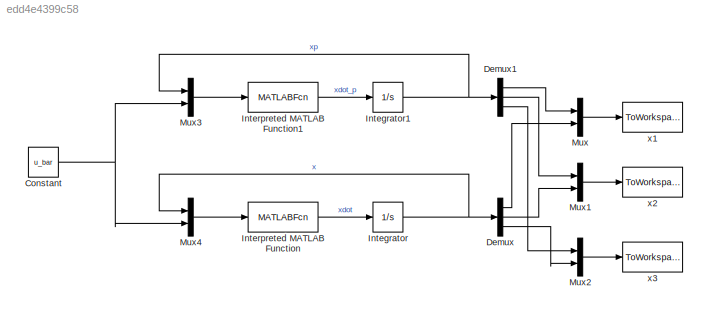
MODEL slx_edd4e4399c58
KIND model
CONFIG AbsTol = auto
CONFIG EnableMultiTasking = on
CONFIG FixedStep = auto
CONFIG MaxStep = auto
CONFIG MinStep = auto
CONFIG RelTol = 1e-3
CONFIG SampleTimeConstraint = Unconstrained
CONFIG SolverName = ode45
CONFIG StartTime = 0.0
CONFIG StopTime = Tfin
BLOCK [Constant] Constant
  SampleTime = 0.1
  Value = u_bar
BLOCK [Demux] Demux
  Outputs = 3
BLOCK [Demux] Demux1
  Outputs = 3
BLOCK [Integrator] Integrator
  InitialCondition = x0
BLOCK [Integrator] Integrator1
  InitialCondition = x0_p
BLOCK [MATLABFcn] Interpreted MATLAB Function
  MATLABFcn = chua_circuit(u(1:3),u(4))
BLOCK [MATLABFcn] Interpreted MATLAB Function1
  MATLABFcn = chua_circuit(u(1:3),u(4))
BLOCK [Mux] Mux
  DisplayOption = bar
  Inputs = 2
BLOCK [Mux] Mux1
  DisplayOption = bar
  Inputs = 2
BLOCK [Mux] Mux2
  DisplayOption = bar
  Inputs = 2
BLOCK [Mux] Mux3
  DisplayOption = bar
  Inputs = 2
BLOCK [Mux] Mux4
  DisplayOption = bar
  Inputs = 2
BLOCK [ToWorkspace] x1
  FixptAsFi = on
  MaxDataPoints = inf
  SampleTime = 0.1
  VariableName = x1
BLOCK [ToWorkspace] x2
  MaxDataPoints = inf
  SampleTime = 0.1
  VariableName = x2
BLOCK [ToWorkspace] x3 
  FixptAsFi = on
  MaxDataPoints = inf
  SampleTime = 0.1
  VariableName = x3
NET Constant:1 -> Mux3:2, Mux4:2
LINE Demux1:1 -> Mux:1
LINE Demux1:2 -> Mux1:1
LINE Demux1:3 -> Mux2:1
LINE Demux:1 -> Mux:2
LINE Demux:2 -> Mux1:2
LINE Demux:3 -> Mux2:2
NET Integrator1:1 -> Demux1:1, Mux3:1
NET Integrator:1 -> Demux:1, Mux4:1
LINE Interpreted MATLAB Function1:1 -> Integrator1:1
LINE Interpreted MATLAB Function:1 -> Integrator:1
LINE Mux1:1 -> x2:1
LINE Mux2:1 -> x3 :1
LINE Mux3:1 -> Interpreted MATLAB Function1:1
LINE Mux4:1 -> Interpreted MATLAB Function:1
LINE Mux:1 -> x1:1
note: NET lines group one-source signal fan-out (src -> all destinations, sorted); 1:1 wires keep LINE
